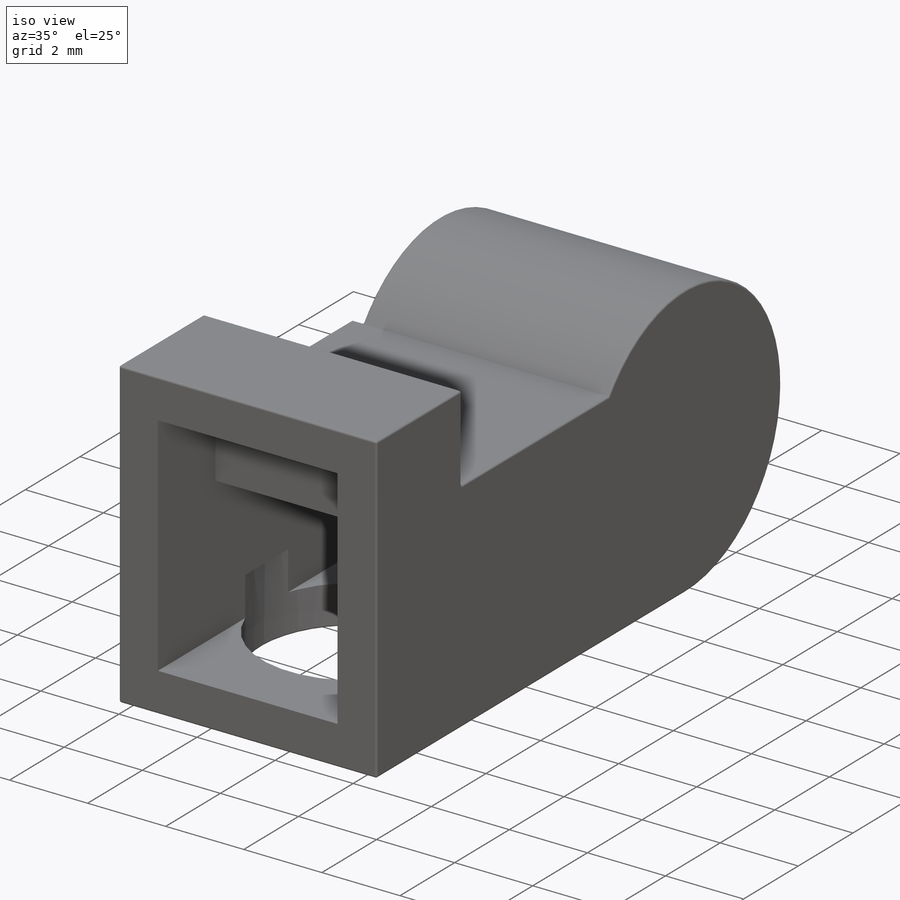
[diagram: iso view]
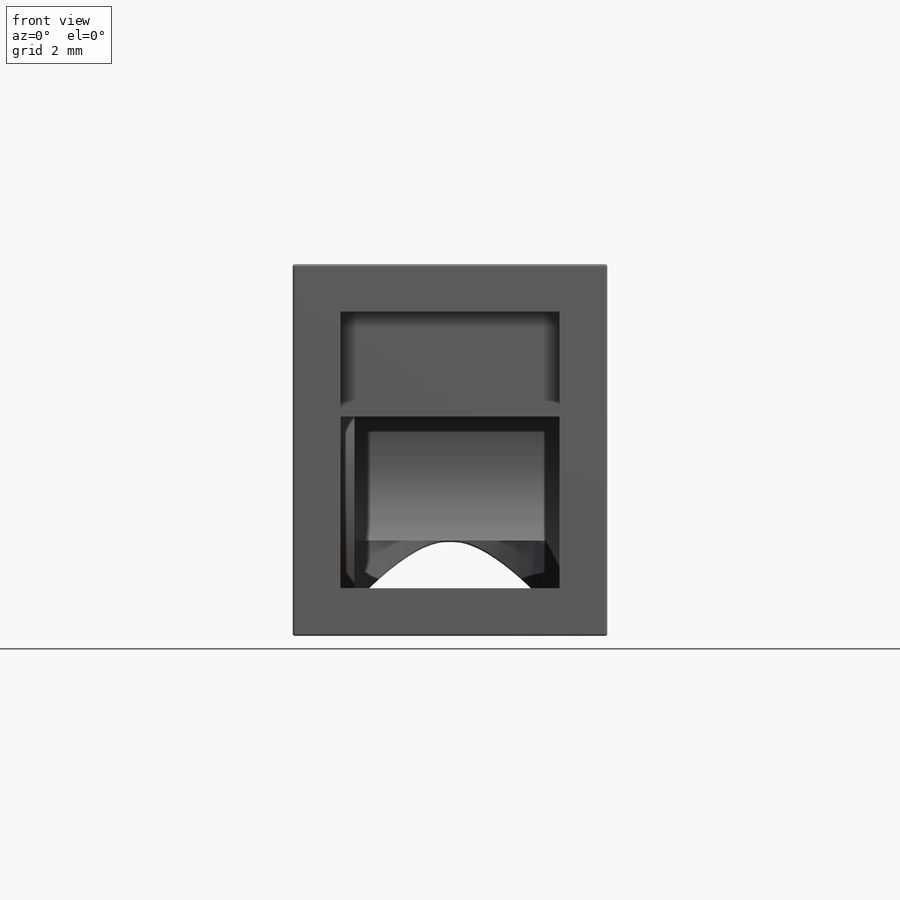
[diagram: front view]
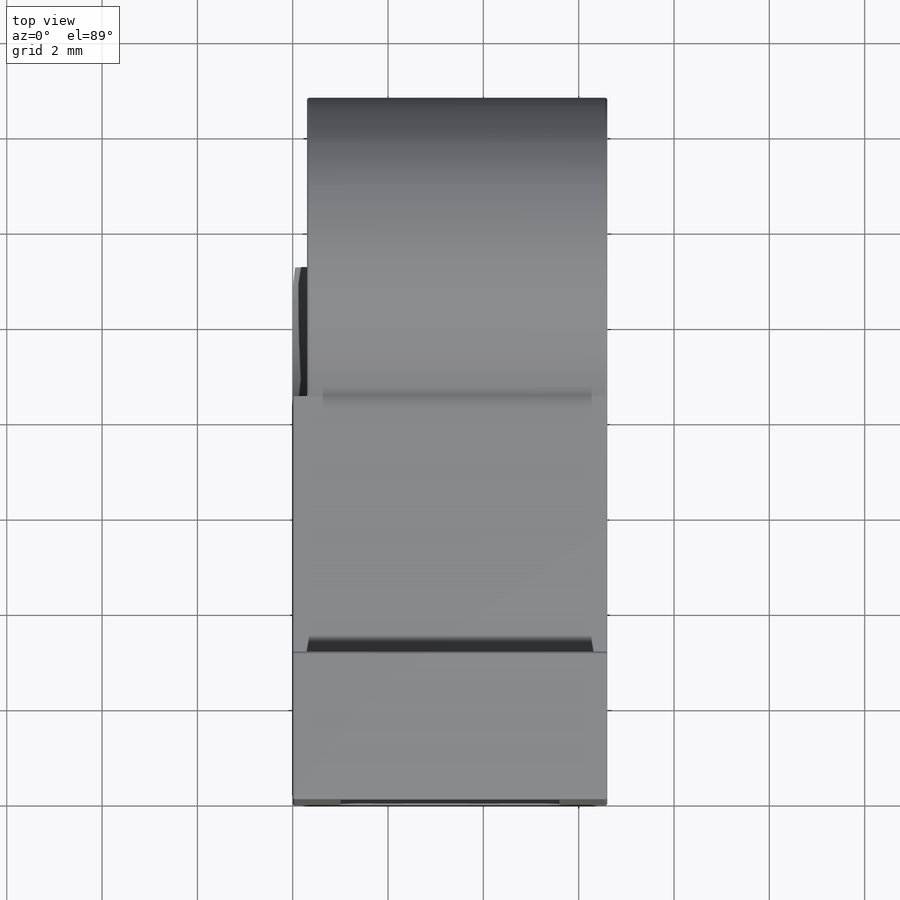
[diagram: top view]
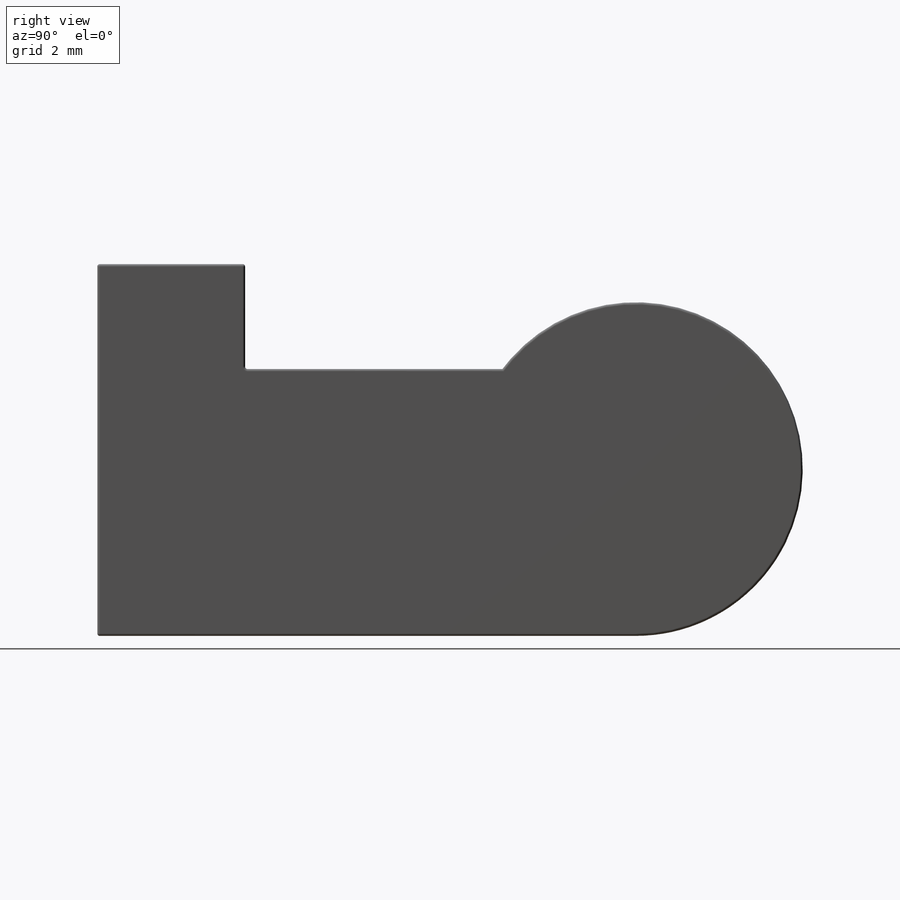
[diagram: right view]
SOLIDWORKS PART (.sldprt)
format: sldprt  version: not decoded by parser v0  size: 305,664 bytes
history: native  units: mm
features: sketch x4, cut_extrude x3, material x1, extrude x1, shell x1, fillet x1 (+14 scaffold rows collapsed)
feature tree (25):
  scaffold x14  (default folders/planes/origin — collapsed)
  material  "Material <not specified>"
  sketch  "Sketch1"  dims[c1.D5=7.0mm c1.D1=7.8mm c1.D2=2.4mm c1.D3=3.1mm c2.D2=5.6mm c2.D4=5.4mm]
  extrude  "Extrude1"  Depth=6.6mm
  sketch  "Sketch3"
  cut_extrude  "Extrude2"  Depth=0.3mm
  shell  "Shell2"  Thickness=1mm
  sketch  "Sketch4"  dims[D1=2.5mm]
  cut_extrude  "Extrude3"  [1 undecoded]
  sketch  "Sketch5"  dims[D1=4.86mm D2=3.98mm D3=7.96mm D4=11.94mm]
  cut_extrude  "Extrude4"  Depth=2mm
  fillet  "Fillet1"  Radius=0.05mm
decode coverage: 8 of 10 modeling features carry decoded parameters
note: 1 parameter value undecoded
note: suppression state not decoded; provenance and decode notes live in map.json
